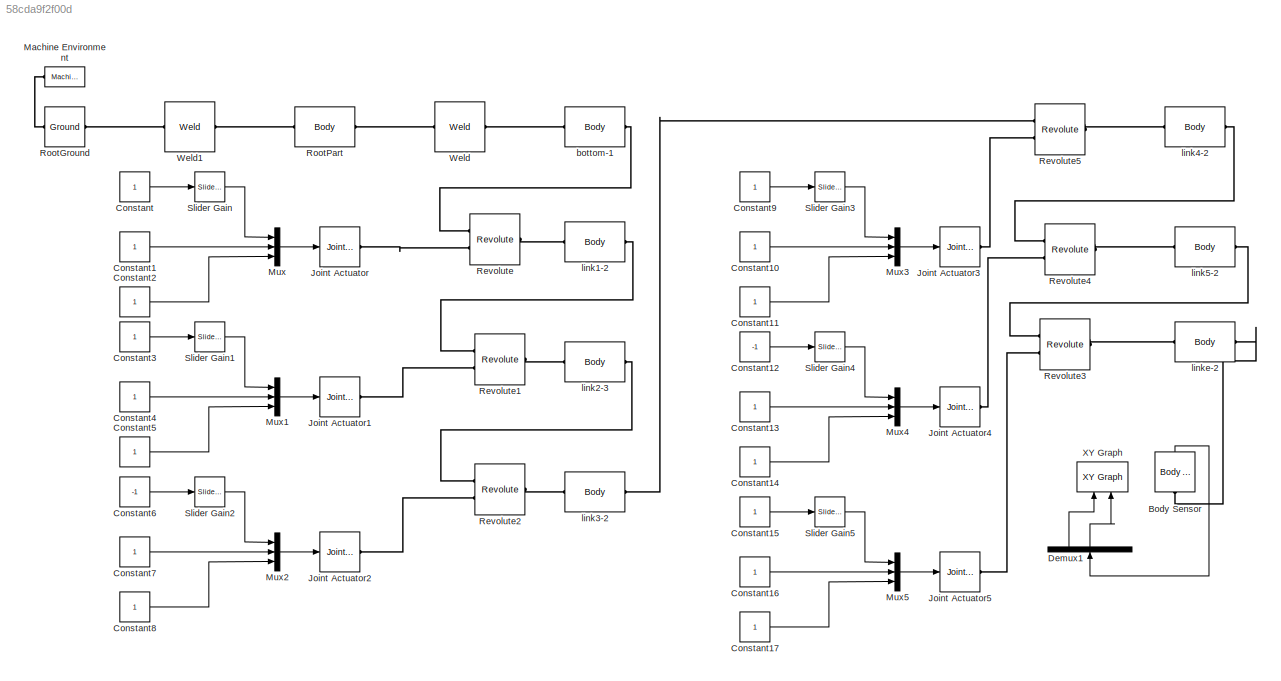
MODEL slx_58cda9f2f00d
KIND model
CONFIG AbsTol = auto
CONFIG EnableMultiTasking = off
CONFIG FixedStep = auto
CONFIG MaxStep = auto
CONFIG MinStep = auto
CONFIG RelTol = 1e-3
CONFIG SampleTimeConstraint = Unconstrained
CONFIG Solver = VariableStepAuto
CONFIG SolverName = VariableStepAuto
CONFIG StartTime = 0.0
CONFIG StopTime = inf
BLOCK [Reference] Body Sensor  REF=mblibv1/Sensors & 
Actuators/Body Sensor
  Ports = [0, 1, 0, 0, 0, 1]
  SourceBlock = mblibv1/Sensors & \nActuators/Body Sensor
  SourceProductBaseCode = SS
  SourceProductName = Simscape
  SourceType = Body Sensor
BLOCK [Constant] Constant
BLOCK [Constant] Constant1
BLOCK [Constant] Constant10
BLOCK [Constant] Constant11
BLOCK [Constant] Constant12
  Value = -1
BLOCK [Constant] Constant13
BLOCK [Constant] Constant14
BLOCK [Constant] Constant15
BLOCK [Constant] Constant16
BLOCK [Constant] Constant17
BLOCK [Constant] Constant2
BLOCK [Constant] Constant3
BLOCK [Constant] Constant4
BLOCK [Constant] Constant5
BLOCK [Constant] Constant6
  Value = -1
BLOCK [Constant] Constant7
BLOCK [Constant] Constant8
BLOCK [Constant] Constant9
BLOCK [Demux] Demux1
  DisplayOption = bar
  Outputs = 3
  Ports = [1, 3]
BLOCK [Reference] Joint Actuator  REF=mblibv1/Sensors & 
Actuators/Joint Actuator
  Ports = [1, 0, 0, 0, 0, 0, 1]
  SourceBlock = mblibv1/Sensors & \nActuators/Joint Actuator
  SourceProductBaseCode = SS
  SourceProductName = Simscape
  SourceType = Joint Actuator
BLOCK [Reference] Joint Actuator1  REF=mblibv1/Sensors & 
Actuators/Joint Actuator
  Ports = [1, 0, 0, 0, 0, 0, 1]
  SourceBlock = mblibv1/Sensors & \nActuators/Joint Actuator
  SourceProductBaseCode = SS
  SourceProductName = Simscape
  SourceType = Joint Actuator
BLOCK [Reference] Joint Actuator2  REF=mblibv1/Sensors & 
Actuators/Joint Actuator
  Ports = [1, 0, 0, 0, 0, 0, 1]
  SourceBlock = mblibv1/Sensors & \nActuators/Joint Actuator
  SourceProductBaseCode = SS
  SourceProductName = Simscape
  SourceType = Joint Actuator
BLOCK [Reference] Joint Actuator3  REF=mblibv1/Sensors & 
Actuators/Joint Actuator
  Ports = [1, 0, 0, 0, 0, 0, 1]
  SourceBlock = mblibv1/Sensors & \nActuators/Joint Actuator
  SourceProductBaseCode = SS
  SourceProductName = Simscape
  SourceType = Joint Actuator
BLOCK [Reference] Joint Actuator4  REF=mblibv1/Sensors & 
Actuators/Joint Actuator
  Ports = [1, 0, 0, 0, 0, 0, 1]
  SourceBlock = mblibv1/Sensors & \nActuators/Joint Actuator
  SourceProductBaseCode = SS
  SourceProductName = Simscape
  SourceType = Joint Actuator
BLOCK [Reference] Joint Actuator5  REF=mblibv1/Sensors & 
Actuators/Joint Actuator
  Ports = [1, 0, 0, 0, 0, 0, 1]
  SourceBlock = mblibv1/Sensors & \nActuators/Joint Actuator
  SourceProductBaseCode = SS
  SourceProductName = Simscape
  SourceType = Joint Actuator
BLOCK [Reference] Machine Environment  REF=mblibv1/Bodies/Machine
Environment
  Ports = [0, 0, 0, 0, 0, 0, 1]
  SourceBlock = mblibv1/Bodies/Machine\nEnvironment
  SourceProductBaseCode = SS
  SourceProductName = Simscape
  SourceType = Machine Environment
BLOCK [Mux] Mux
  DisplayOption = bar
  Inputs = 3
  Ports = [3, 1]
BLOCK [Mux] Mux1
  DisplayOption = bar
  Inputs = 3
  Ports = [3, 1]
BLOCK [Mux] Mux2
  DisplayOption = bar
  Inputs = 3
  Ports = [3, 1]
BLOCK [Mux] Mux3
  DisplayOption = bar
  Inputs = 3
  Ports = [3, 1]
BLOCK [Mux] Mux4
  DisplayOption = bar
  Inputs = 3
  Ports = [3, 1]
BLOCK [Mux] Mux5
  DisplayOption = bar
  Inputs = 3
  Ports = [3, 1]
BLOCK [Reference] Revolute  REF=mblibv1/Joints/Revolute
  Ports = [0, 0, 0, 0, 0, 2, 1]
  SourceBlock = mblibv1/Joints/Revolute
  SourceProductBaseCode = SS
  SourceProductName = Simscape
  SourceType = Revolute
BLOCK [Reference] Revolute1  REF=mblibv1/Joints/Revolute
  Ports = [0, 0, 0, 0, 0, 2, 1]
  SourceBlock = mblibv1/Joints/Revolute
  SourceProductBaseCode = SS
  SourceProductName = Simscape
  SourceType = Revolute
BLOCK [Reference] Revolute2  REF=mblibv1/Joints/Revolute
  Ports = [0, 0, 0, 0, 0, 2, 1]
  SourceBlock = mblibv1/Joints/Revolute
  SourceProductBaseCode = SS
  SourceProductName = Simscape
  SourceType = Revolute
BLOCK [Reference] Revolute3  REF=mblibv1/Joints/Revolute
  Ports = [0, 0, 0, 0, 0, 2, 1]
  SourceBlock = mblibv1/Joints/Revolute
  SourceProductBaseCode = SS
  SourceProductName = Simscape
  SourceType = Revolute
BLOCK [Reference] Revolute4  REF=mblibv1/Joints/Revolute
  Ports = [0, 0, 0, 0, 0, 2, 1]
  SourceBlock = mblibv1/Joints/Revolute
  SourceProductBaseCode = SS
  SourceProductName = Simscape
  SourceType = Revolute
BLOCK [Reference] Revolute5  REF=mblibv1/Joints/Revolute
  Ports = [0, 0, 0, 0, 0, 2, 1]
  SourceBlock = mblibv1/Joints/Revolute
  SourceProductBaseCode = SS
  SourceProductName = Simscape
  SourceType = Revolute
BLOCK [Reference] RootGround  REF=mblibv1/Bodies/Ground
  Ports = [0, 0, 0, 0, 0, 1, 1]
  SourceBlock = mblibv1/Bodies/Ground
  SourceProductBaseCode = SS
  SourceProductName = Simscape
  SourceType = Ground
  UserDataPersistent = on
BLOCK [Reference] RootPart  REF=mblibv1/Bodies/Body
  Ports = [0, 0, 0, 0, 0, 1, 1]
  SourceBlock = mblibv1/Bodies/Body
  SourceProductBaseCode = SS
  SourceProductName = Simscape
  SourceType = Body
BLOCK [Reference] Slider Gain  REF=simulink/Math
Operations/Slider
Gain
  Ports = [1, 1]
  SourceBlock = simulink/Math\nOperations/Slider\nGain
  SourceProductBaseCode = SL
  SourceProductName = Simulink
  SourceType = Slider Gain
BLOCK [Reference] Slider Gain1  REF=simulink/Math
Operations/Slider
Gain
  Ports = [1, 1]
  SourceBlock = simulink/Math\nOperations/Slider\nGain
  SourceProductBaseCode = SL
  SourceProductName = Simulink
  SourceType = Slider Gain
BLOCK [Reference] Slider Gain2  REF=simulink/Math
Operations/Slider
Gain
  Ports = [1, 1]
  SourceBlock = simulink/Math\nOperations/Slider\nGain
  SourceProductBaseCode = SL
  SourceProductName = Simulink
  SourceType = Slider Gain
BLOCK [Reference] Slider Gain3  REF=simulink/Math
Operations/Slider
Gain
  Ports = [1, 1]
  SourceBlock = simulink/Math\nOperations/Slider\nGain
  SourceProductBaseCode = SL
  SourceProductName = Simulink
  SourceType = Slider Gain
BLOCK [Reference] Slider Gain4  REF=simulink/Math
Operations/Slider
Gain
  Ports = [1, 1]
  SourceBlock = simulink/Math\nOperations/Slider\nGain
  SourceProductBaseCode = SL
  SourceProductName = Simulink
  SourceType = Slider Gain
BLOCK [Reference] Slider Gain5  REF=simulink/Math
Operations/Slider
Gain
  Ports = [1, 1]
  SourceBlock = simulink/Math\nOperations/Slider\nGain
  SourceProductBaseCode = SL
  SourceProductName = Simulink
  SourceType = Slider Gain
BLOCK [Reference] Weld  REF=mblibv1/Joints/Weld
  Ports = [0, 0, 0, 0, 0, 1, 1]
  SourceBlock = mblibv1/Joints/Weld
  SourceProductBaseCode = SS
  SourceProductName = Simscape
  SourceType = Weld
BLOCK [Reference] Weld1  REF=mblibv1/Joints/Weld
  Ports = [0, 0, 0, 0, 0, 1, 1]
  SourceBlock = mblibv1/Joints/Weld
  SourceProductBaseCode = SS
  SourceProductName = Simscape
  SourceType = Weld
BLOCK [Reference] XY Graph  REF=simulink/Sinks/XY Graph
  Ports = [2]
  SourceBlock = simulink/Sinks/XY Graph
  SourceProductBaseCode = SL
  SourceProductName = Simulink
  SourceType = XY scope.
BLOCK [Reference] bottom-1  REF=mblibv1/Bodies/Body
  Ports = [0, 0, 0, 0, 0, 1, 1]
  SourceBlock = mblibv1/Bodies/Body
  SourceProductBaseCode = SS
  SourceProductName = Simscape
  SourceType = Body
BLOCK [Reference] link1-2  REF=mblibv1/Bodies/Body
  Ports = [0, 0, 0, 0, 0, 1, 1]
  SourceBlock = mblibv1/Bodies/Body
  SourceProductBaseCode = SS
  SourceProductName = Simscape
  SourceType = Body
BLOCK [Reference] link2-3  REF=mblibv1/Bodies/Body
  Ports = [0, 0, 0, 0, 0, 1, 1]
  SourceBlock = mblibv1/Bodies/Body
  SourceProductBaseCode = SS
  SourceProductName = Simscape
  SourceType = Body
BLOCK [Reference] link3-2  REF=mblibv1/Bodies/Body
  Ports = [0, 0, 0, 0, 0, 1, 1]
  SourceBlock = mblibv1/Bodies/Body
  SourceProductBaseCode = SS
  SourceProductName = Simscape
  SourceType = Body
BLOCK [Reference] link4-2  REF=mblibv1/Bodies/Body
  Ports = [0, 0, 0, 0, 0, 1, 1]
  SourceBlock = mblibv1/Bodies/Body
  SourceProductBaseCode = SS
  SourceProductName = Simscape
  SourceType = Body
BLOCK [Reference] link5-2  REF=mblibv1/Bodies/Body
  Ports = [0, 0, 0, 0, 0, 1, 1]
  SourceBlock = mblibv1/Bodies/Body
  SourceProductBaseCode = SS
  SourceProductName = Simscape
  SourceType = Body
BLOCK [Reference] linke-2  REF=mblibv1/Bodies/Body
  Ports = [0, 0, 0, 0, 0, 1, 1]
  SourceBlock = mblibv1/Bodies/Body
  SourceProductBaseCode = SS
  SourceProductName = Simscape
  SourceType = Body
LINE Body Sensor:1 -> Demux1:1
LINE Constant10:1 -> Mux3:2
LINE Constant11:1 -> Mux3:3
LINE Constant12:1 -> Slider Gain4:1
LINE Constant13:1 -> Mux4:2
LINE Constant14:1 -> Mux4:3
LINE Constant15:1 -> Slider Gain5:1
LINE Constant16:1 -> Mux5:2
LINE Constant17:1 -> Mux5:3
LINE Constant1:1 -> Mux:2
LINE Constant2:1 -> Mux:3
LINE Constant3:1 -> Slider Gain1:1
LINE Constant4:1 -> Mux1:2
LINE Constant5:1 -> Mux1:3
LINE Constant6:1 -> Slider Gain2:1
LINE Constant7:1 -> Mux2:2
LINE Constant8:1 -> Mux2:3
LINE Constant9:1 -> Slider Gain3:1
LINE Constant:1 -> Slider Gain:1
LINE Demux1:1 -> XY Graph:1
LINE Demux1:2 -> XY Graph:2
LINE Mux1:1 -> Joint Actuator1:1
LINE Mux2:1 -> Joint Actuator2:1
LINE Mux3:1 -> Joint Actuator3:1
LINE Mux4:1 -> Joint Actuator4:1
LINE Mux5:1 -> Joint Actuator5:1
LINE Mux:1 -> Joint Actuator:1
LINE Slider Gain1:1 -> Mux1:1
LINE Slider Gain2:1 -> Mux2:1
LINE Slider Gain3:1 -> Mux3:1
LINE Slider Gain4:1 -> Mux4:1
LINE Slider Gain5:1 -> Mux5:1
LINE Slider Gain:1 -> Mux:1
PLINE Body Sensor:LConn1 -- linke-2:RConn1
PLINE Joint Actuator1:RConn1 -- Revolute1:LConn2
PLINE Joint Actuator2:RConn1 -- Revolute2:LConn2
PLINE Joint Actuator3:RConn1 -- Revolute5:LConn2
PLINE Joint Actuator4:RConn1 -- Revolute4:LConn2
PLINE Joint Actuator5:RConn1 -- Revolute3:LConn2
PLINE Joint Actuator:RConn1 -- Revolute:LConn2
PLINE Machine Environment:RConn1 -- RootGround:LConn1
PLINE Revolute1:LConn1 -- link1-2:RConn1
PLINE Revolute1:RConn1 -- link2-3:LConn1
PLINE Revolute2:LConn1 -- link2-3:RConn1
PLINE Revolute2:RConn1 -- link3-2:LConn1
PLINE Revolute3:LConn1 -- link5-2:RConn1
PLINE Revolute3:RConn1 -- linke-2:LConn1
PLINE Revolute4:LConn1 -- link4-2:RConn1
PLINE Revolute4:RConn1 -- link5-2:LConn1
PLINE Revolute5:LConn1 -- link3-2:RConn1
PLINE Revolute5:RConn1 -- link4-2:LConn1
PLINE Revolute:LConn1 -- bottom-1:RConn1
PLINE Revolute:RConn1 -- link1-2:LConn1
PLINE RootGround:RConn1 -- Weld1:LConn1
PLINE RootPart:LConn1 -- Weld1:RConn1
PLINE RootPart:RConn1 -- Weld:LConn1
PLINE Weld:RConn1 -- bottom-1:LConn1
